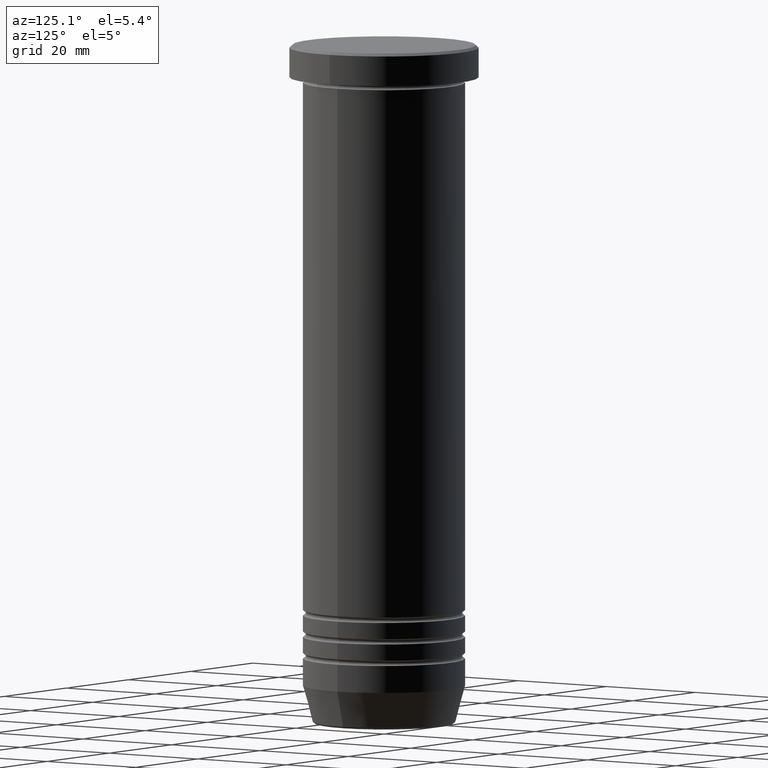
[diagram: clean part render]
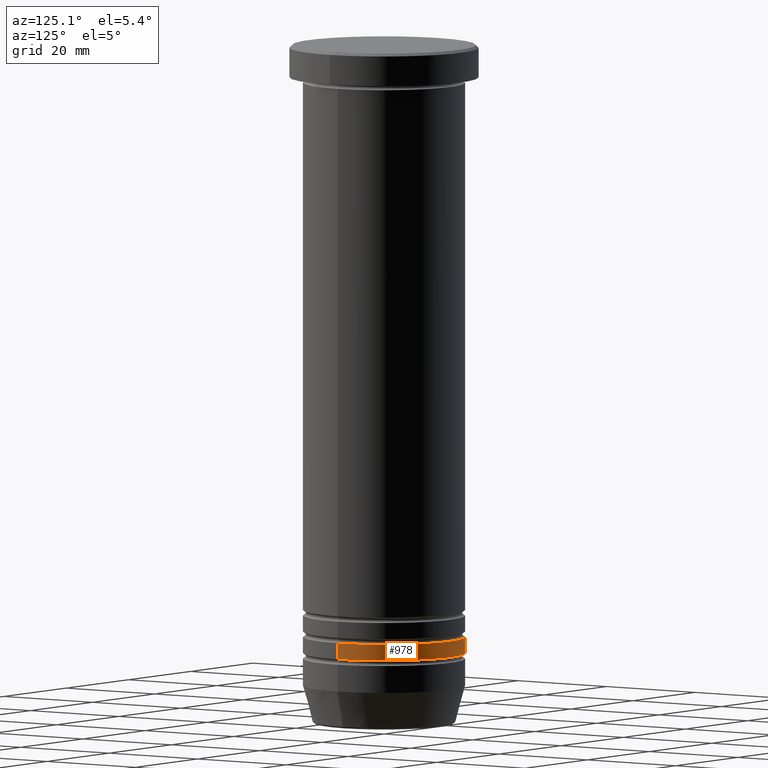
[diagram: same view with one face highlighted and labeled with its STEP entity id]
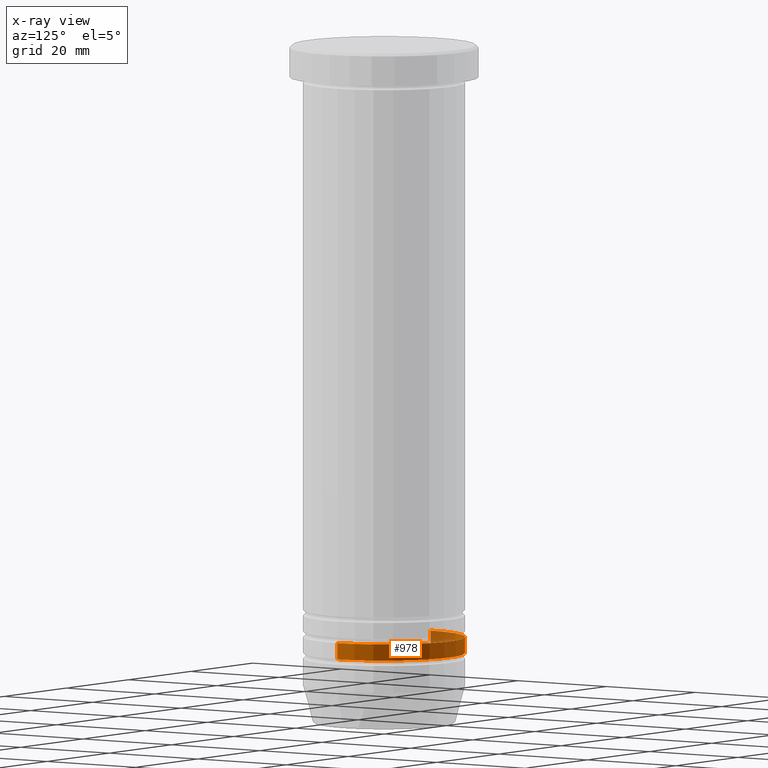
[diagram: x-ray of the same camera — body ghosted, the highlighted face saturated]
A machine part, auxiliary view. The second image highlights one B-rep face of the part: STEP entity #978.
The next image is the same camera in x-ray: the body ghosted, the highlighted face saturated — about 11% of this face is hidden behind the body in this view.
In plain terms, the highlighted cylindrical surface (partial cylindrical patch) has radius 15 mm, axis along (-0, -0, 1).
Its self-contained STEP definition (entity closure, byte-faithful):
#13 = DIRECTION ( 'NONE',  ( -0.000000000000000000, -0.000000000000000000, 1.000000000000000000 ) ) ;
#19 = VERTEX_POINT ( 'NONE', #722 ) ;
#110 = DIRECTION ( 'NONE',  ( 1.000000000000000000, 0.000000000000000000, 0.000000000000000000 ) ) ;
#122 = VERTEX_POINT ( 'NONE', #846 ) ;
#131 = EDGE_LOOP ( 'NONE', ( #992, #642, #461, #519 ) ) ;
#170 = FACE_OUTER_BOUND ( 'NONE', #131, .T. ) ;
#173 = EDGE_CURVE ( 'NONE', #122, #291, #888, .T. ) ;
#197 = LINE ( 'NONE', #454, #381 ) ;
#211 = AXIS2_PLACEMENT_3D ( 'NONE', #900, #643, #110 ) ;
#217 = CARTESIAN_POINT ( 'NONE',  ( 0.000000000000000000, 0.000000000000000000, -110.0000000000000142 ) ) ;
#228 = CIRCLE ( 'NONE', #211, 14.99999999999999112 ) ;
#235 = DIRECTION ( 'NONE',  ( 1.000000000000000000, 0.000000000000000000, 0.000000000000000000 ) ) ;
#250 = CARTESIAN_POINT ( 'NONE',  ( 0.000000000000000000, 0.000000000000000000, 0.000000000000000000 ) ) ;
#253 = AXIS2_PLACEMENT_3D ( 'NONE', #250, #262, #1045 ) ;
#262 = DIRECTION ( 'NONE',  ( -0.000000000000000000, -0.000000000000000000, 1.000000000000000000 ) ) ;
#291 = VERTEX_POINT ( 'NONE', #701 ) ;
#317 = CARTESIAN_POINT ( 'NONE',  ( 14.99999999999999112, 0.000000000000000000, -113.0000000000000000 ) ) ;
#381 = VECTOR ( 'NONE', #13, 1000.000000000000000 ) ;
#416 = AXIS2_PLACEMENT_3D ( 'NONE', #217, #1021, #235 ) ;
#454 = CARTESIAN_POINT ( 'NONE',  ( -14.99999999999999467, 1.836970198721029194E-15, 0.000000000000000000 ) ) ;
#461 = ORIENTED_EDGE ( 'NONE', *, *, #173, .F. ) ;
#519 = ORIENTED_EDGE ( 'NONE', *, *, #1040, .F. ) ;
#544 = CARTESIAN_POINT ( 'NONE',  ( 14.99999999999999467, 0.000000000000000000, 0.000000000000000000 ) ) ;
#608 = VECTOR ( 'NONE', #810, 1000.000000000000000 ) ;
#642 = ORIENTED_EDGE ( 'NONE', *, *, #1131, .T. ) ;
#643 = DIRECTION ( 'NONE',  ( -0.000000000000000000, -0.000000000000000000, 1.000000000000000000 ) ) ;
#701 = CARTESIAN_POINT ( 'NONE',  ( -14.99999999999999822, 1.836970198721029589E-15, -110.0000000000000142 ) ) ;
#722 = CARTESIAN_POINT ( 'NONE',  ( -14.99999999999999112, 1.836970198721028800E-15, -113.0000000000000000 ) ) ;
#810 = DIRECTION ( 'NONE',  ( -0.000000000000000000, -0.000000000000000000, 1.000000000000000000 ) ) ;
#828 = VERTEX_POINT ( 'NONE', #317 ) ;
#846 = CARTESIAN_POINT ( 'NONE',  ( 14.99999999999999822, 0.000000000000000000, -110.0000000000000142 ) ) ;
#888 = CIRCLE ( 'NONE', #416, 14.99999999999999822 ) ;
#900 = CARTESIAN_POINT ( 'NONE',  ( 0.000000000000000000, 0.000000000000000000, -113.0000000000000000 ) ) ;
#921 = LINE ( 'NONE', #544, #608 ) ;
#978 = ADVANCED_FACE ( 'NONE', ( #170 ), #1037, .T. ) ;
#992 = ORIENTED_EDGE ( 'NONE', *, *, #1073, .T. ) ;
#1021 = DIRECTION ( 'NONE',  ( -0.000000000000000000, -0.000000000000000000, 1.000000000000000000 ) ) ;
#1037 = CYLINDRICAL_SURFACE ( 'NONE', #253, 14.99999999999999467 ) ;
#1040 = EDGE_CURVE ( 'NONE', #828, #122, #921, .T. ) ;
#1045 = DIRECTION ( 'NONE',  ( 1.000000000000000000, 0.000000000000000000, 0.000000000000000000 ) ) ;
#1073 = EDGE_CURVE ( 'NONE', #828, #19, #228, .T. ) ;
#1131 = EDGE_CURVE ( 'NONE', #19, #291, #197, .T. ) ;